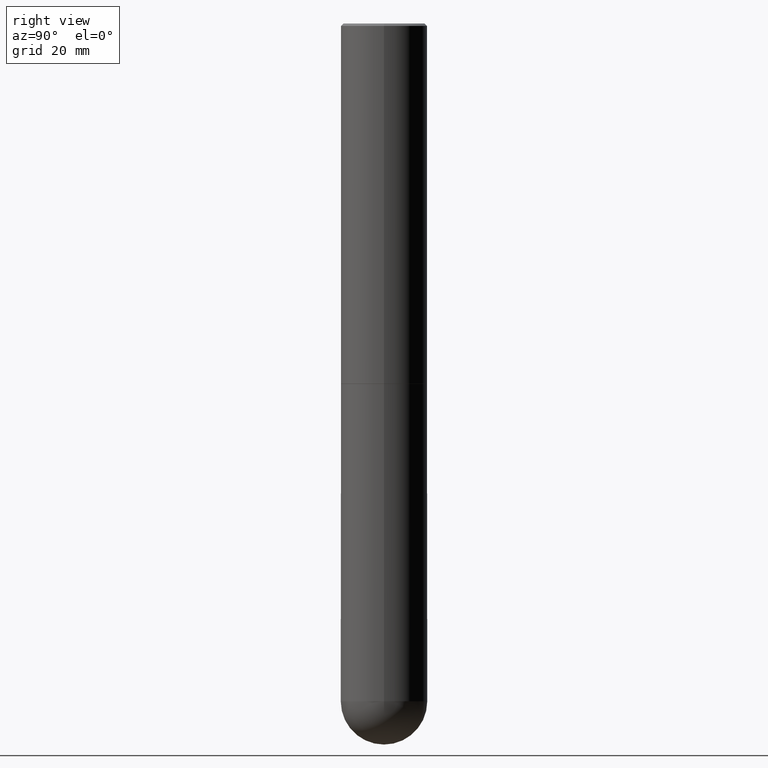
[diagram: clean part render]
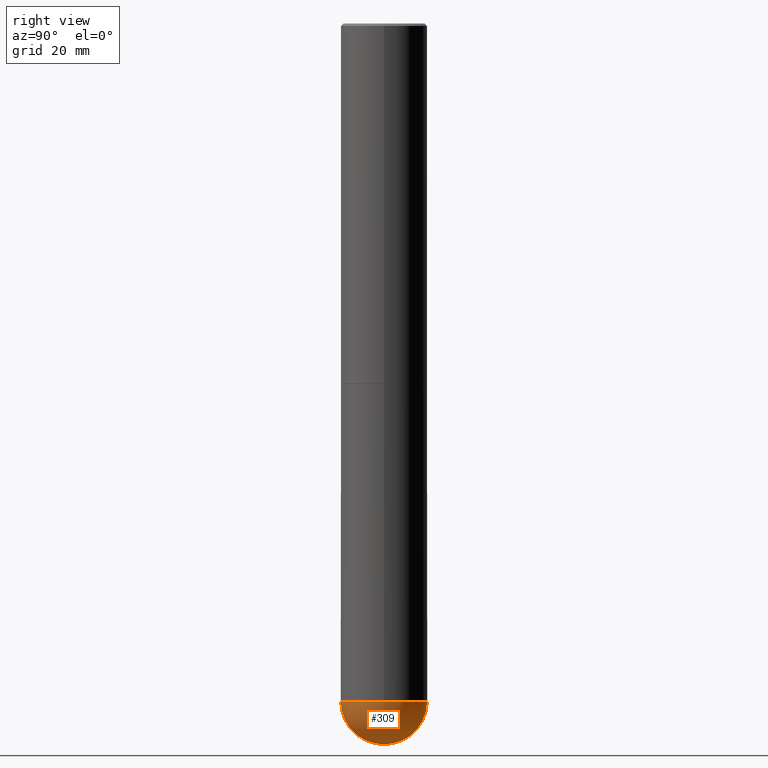
[diagram: same view with one face highlighted and labeled with its STEP entity id]
A machine part, right view. The second image highlights one B-rep face of the part: STEP entity #309.
In plain terms, the highlighted spherical surface has radius 9.0005 mm.
Its self-contained STEP definition (entity closure, byte-faithful):
#13 = VERTEX_POINT ( 'NONE', #363 ) ;
#18 = EDGE_CURVE ( 'NONE', #112, #49, #343, .T. ) ;
#19 = AXIS2_PLACEMENT_3D ( 'NONE', #258, #381, #225 ) ;
#20 = CIRCLE ( 'NONE', #19, 0.3543500000000002204 ) ;
#49 = VERTEX_POINT ( 'NONE', #187 ) ;
#54 = CARTESIAN_POINT ( 'NONE',  ( 1.324404438554073486E-28, -1.985591900225917417E-14, -5.551149999999999807 ) ) ;
#60 = DIRECTION ( 'NONE',  ( -1.000000000000000000, 7.105427357601001070E-15, -4.926315508542082329E-29 ) ) ;
#83 = CARTESIAN_POINT ( 'NONE',  ( 1.357516416345461774E-28, -1.938173663411912545E-14, -5.551149999999999807 ) ) ;
#107 = AXIS2_PLACEMENT_3D ( 'NONE', #276, #301, #248 ) ;
#112 = VERTEX_POINT ( 'NONE', #161 ) ;
#145 = EDGE_CURVE ( 'NONE', #13, #112, #295, .T. ) ;
#161 = CARTESIAN_POINT ( 'NONE',  ( -2.517808184165781285E-15, -0.3543500000000196493, -5.551149999999998919 ) ) ;
#176 = FACE_OUTER_BOUND ( 'NONE', #300, .T. ) ;
#184 = DIRECTION ( 'NONE',  ( -7.105427357601001070E-15, -1.000000000000000000, 0.000000000000000000 ) ) ;
#187 = CARTESIAN_POINT ( 'NONE',  ( 0.3543499999999999428, -1.731992961649876932E-14, -5.551149999999999807 ) ) ;
#197 = EDGE_CURVE ( 'NONE', #13, #297, #20, .T. ) ;
#208 = DIRECTION ( 'NONE',  ( -2.445468806185136597E-29, 3.491481338843145583E-15, 1.000000000000000000 ) ) ;
#225 = DIRECTION ( 'NONE',  ( 6.982962677686265133E-15, 1.000000000000000000, 0.000000000000000000 ) ) ;
#236 = ORIENTED_EDGE ( 'NONE', *, *, #18, .F. ) ;
#242 = EDGE_CURVE ( 'NONE', #49, #297, #262, .T. ) ;
#245 = DIRECTION ( 'NONE',  ( 1.000000000000000000, -6.982962677686261189E-15, 0.000000000000000000 ) ) ;
#248 = DIRECTION ( 'NONE',  ( 6.982962677686265922E-15, 1.000000000000000000, -3.083784951222533328E-15 ) ) ;
#258 = CARTESIAN_POINT ( 'NONE',  ( 1.324404438554073486E-28, -1.985591900225917417E-14, -5.551149999999999807 ) ) ;
#262 = CIRCLE ( 'NONE', #307, 0.3543499999999999428 ) ;
#266 = ORIENTED_EDGE ( 'NONE', *, *, #242, .F. ) ;
#269 = ORIENTED_EDGE ( 'NONE', *, *, #145, .F. ) ;
#272 = SPHERICAL_SURFACE ( 'NONE', #107, 0.3543500000000002204 ) ;
#276 = CARTESIAN_POINT ( 'NONE',  ( 1.324404438554073486E-28, -1.985591900225917417E-14, -5.551149999999999807 ) ) ;
#289 = AXIS2_PLACEMENT_3D ( 'NONE', #83, #208, #399 ) ;
#295 = CIRCLE ( 'NONE', #299, 0.3543500000000002204 ) ;
#297 = VERTEX_POINT ( 'NONE', #365 ) ;
#299 = AXIS2_PLACEMENT_3D ( 'NONE', #54, #60, #184 ) ;
#300 = EDGE_LOOP ( 'NONE', ( #269, #366, #266, #236 ) ) ;
#301 = DIRECTION ( 'NONE',  ( -1.000000000000000000, 6.982962677686265922E-15, -4.883557194083112340E-29 ) ) ;
#307 = AXIS2_PLACEMENT_3D ( 'NONE', #398, #337, #245 ) ;
#309 = ADVANCED_FACE ( 'NONE', ( #176 ), #272, .T. ) ;
#337 = DIRECTION ( 'NONE',  ( -2.445468806185136597E-29, 3.491481338843145583E-15, 1.000000000000000000 ) ) ;
#343 = CIRCLE ( 'NONE', #289, 0.3543499999999999428 ) ;
#363 = CARTESIAN_POINT ( 'NONE',  ( 1.412574766574097249E-28, -2.107142773501435227E-14, -5.905499999999999972 ) ) ;
#365 = CARTESIAN_POINT ( 'NONE',  ( 2.474412824838263195E-15, 0.3543499999999804584, -5.551150000000000695 ) ) ;
#366 = ORIENTED_EDGE ( 'NONE', *, *, #197, .T. ) ;
#381 = DIRECTION ( 'NONE',  ( 1.000000000000000000, -6.982962677686265922E-15, 4.883557194083112340E-29 ) ) ;
#398 = CARTESIAN_POINT ( 'NONE',  ( 1.357516416345461774E-28, -1.938173663411912545E-14, -5.551149999999999807 ) ) ;
#399 = DIRECTION ( 'NONE',  ( 1.000000000000000000, -6.982962677686261189E-15, 0.000000000000000000 ) ) ;